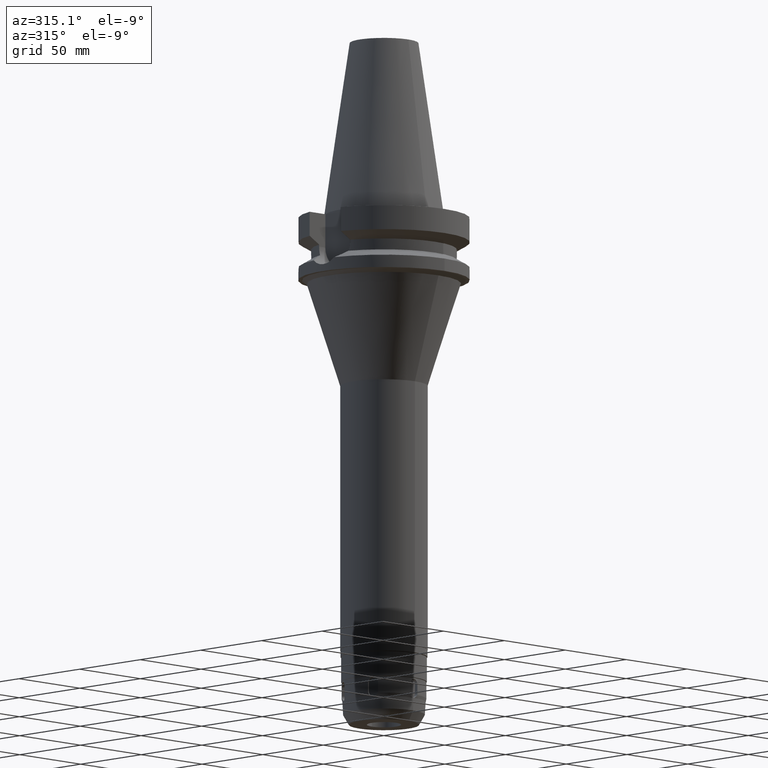
[diagram: clean part render]
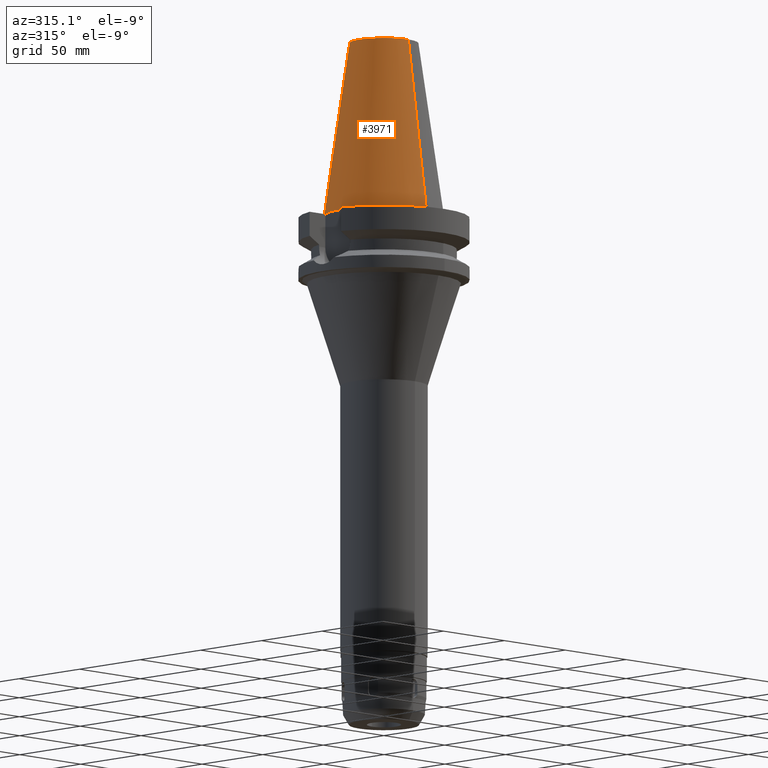
[diagram: same view with one face highlighted and labeled with its STEP entity id]
A machine part, auxiliary view. The second image highlights one B-rep face of the part: STEP entity #3971.
In plain terms, the highlighted conical surface has half-angle 8.297 deg.
Its self-contained STEP definition (entity closure, byte-faithful):
#1943=DIRECTION('',(0.E0,-1.443043893539E-1,-9.895333461856E-1));
#1944=VECTOR('',#1943,1.028767755957E2);
#1945=CARTESIAN_POINT('',(0.E0,-2.007942971896E1,1.018E2));
#1946=LINE('',#1945,#1944);
#1950=CARTESIAN_POINT('',(0.E0,1.847992019913E-14,8.526512829121E-13));
#1951=DIRECTION('',(0.E0,0.E0,-1.E0));
#1952=DIRECTION('',(0.E0,-1.E0,0.E0));
#1953=AXIS2_PLACEMENT_3D('',#1950,#1951,#1952);
#1958=DIRECTION('',(0.E0,1.443043893539E-1,-9.895333461856E-1));
#1959=VECTOR('',#1958,1.028767755957E2);
#1960=CARTESIAN_POINT('',(0.E0,2.007942971896E1,1.018E2));
#1961=LINE('',#1960,#1959);
#1973=CARTESIAN_POINT('',(0.E0,1.847992019913E-14,1.018E2));
#1974=DIRECTION('',(0.E0,0.E0,-1.E0));
#1975=DIRECTION('',(0.E0,-1.E0,0.E0));
#1976=AXIS2_PLACEMENT_3D('',#1973,#1974,#1975);
#2574=CARTESIAN_POINT('',(0.E0,3.4925E1,7.531752999057E-13));
#2575=VERTEX_POINT('',#2574);
#2576=CARTESIAN_POINT('',(0.E0,-3.4925E1,7.531752999057E-13));
#2577=VERTEX_POINT('',#2576);
#2578=CARTESIAN_POINT('',(0.E0,2.007942971896E1,1.018E2));
#2579=VERTEX_POINT('',#2578);
#2580=CARTESIAN_POINT('',(0.E0,-2.007942971896E1,1.018E2));
#2581=VERTEX_POINT('',#2580);
#3957=CARTESIAN_POINT('',(0.E0,1.847992019913E-14,5.09E1));
#3958=DIRECTION('',(0.E0,0.E0,-1.E0));
#3959=DIRECTION('',(0.E0,-1.E0,0.E0));
#3960=AXIS2_PLACEMENT_3D('',#3957,#3958,#3959);
#3961=CONICAL_SURFACE('',#3960,2.750221485948E1,8.297E0);
#3963=ORIENTED_EDGE('',*,*,#3962,.F.);
#3965=ORIENTED_EDGE('',*,*,#3964,.F.);
#3967=ORIENTED_EDGE('',*,*,#3966,.T.);
#3968=ORIENTED_EDGE('',*,*,#3950,.T.);
#3969=EDGE_LOOP('',(#3963,#3965,#3967,#3968));
#3970=FACE_OUTER_BOUND('',#3969,.F.);
#1954=CIRCLE('',#1953,3.4925E1);
#1977=CIRCLE('',#1976,2.007942971896E1);
#3950=EDGE_CURVE('',#2577,#2575,#1954,.T.);
#3962=EDGE_CURVE('',#2579,#2575,#1961,.T.);
#3964=EDGE_CURVE('',#2581,#2579,#1977,.T.);
#3966=EDGE_CURVE('',#2581,#2577,#1946,.T.);
#3971=ADVANCED_FACE('',(#3970),#3961,.T.);